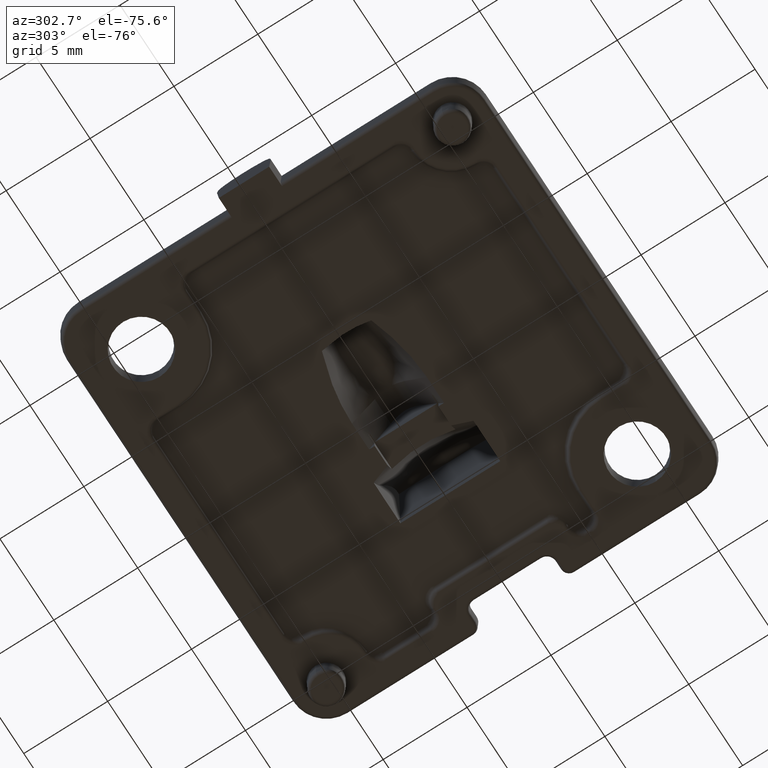
[diagram: clean part render]
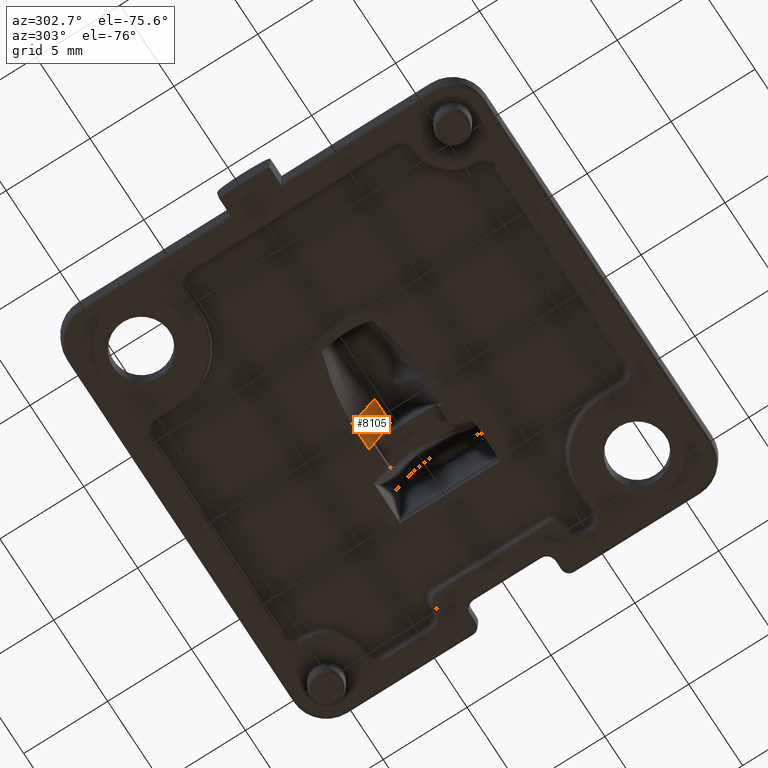
[diagram: same view with one face highlighted and labeled with its STEP entity id]
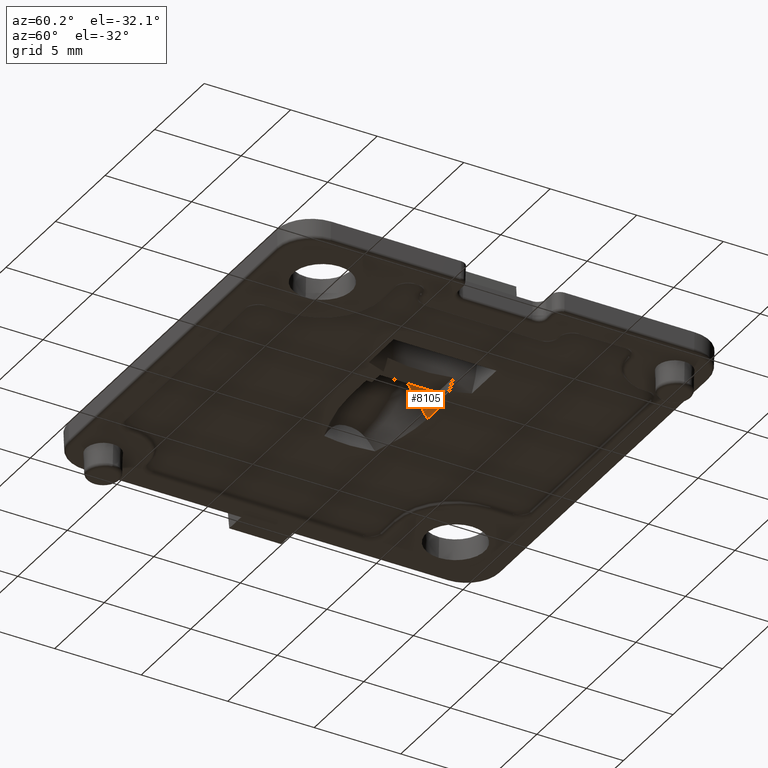
[diagram: same view with one face highlighted and labeled with its STEP entity id]
A machine part, auxiliary view. The second image highlights one B-rep face of the part: STEP entity #8105.
A second angle (auxiliary view) of the same face is appended — the face is thin or edge-on in the first view.
In plain terms, the highlighted face is a freeform B-spline surface patch.
Its self-contained STEP definition (entity closure, byte-faithful):
#69 = CARTESIAN_POINT ( 'NONE',  ( 12.18389571751927700, 0.8692102914227531900, 2.825680269827150600 ) ) ;
#158 = LINE ( 'NONE', #69, #8058 ) ;
#443 = DIRECTION ( 'NONE',  ( 1.000000000000000000, 0.0000000000000000000, 1.457912856127801500E-017 ) ) ;
#445 = EDGE_CURVE ( 'NONE', #547, #1642, #4534, .T. ) ;
#535 = EDGE_CURVE ( 'NONE', #951, #547, #7031, .T. ) ;
#540 = VERTEX_POINT ( 'NONE', #7081 ) ;
#547 = VERTEX_POINT ( 'NONE', #5170 ) ;
#726 = CARTESIAN_POINT ( 'NONE',  ( 1.604327777404126200, 1.381379687142674500, 2.192723211729306500 ) ) ;
#743 = ORIENTED_EDGE ( 'NONE', *, *, #5095, .T. ) ;
#843 = ORIENTED_EDGE ( 'NONE', *, *, #3976, .F. ) ;
#844 = CARTESIAN_POINT ( 'NONE',  ( 1.594759222071696000, 2.231826915377860000, 0.7999999999999989300 ) ) ;
#951 = VERTEX_POINT ( 'NONE', #7553 ) ;
#1089 = B_SPLINE_CURVE_WITH_KNOTS ( 'NONE', 3,
 ( #5578, #4362, #2462, #6789, #3100, #7425 ),
 .UNSPECIFIED., .F., .F.,
 ( 4, 2, 4 ),
 ( 0.0000000000000000000, 0.0008658084553078561200, 0.001731616910615712200 ),
 .UNSPECIFIED. ) ;
#1343 = CARTESIAN_POINT ( 'NONE',  ( 1.604327777404126200, 1.915411158233890600, 1.274335992875806500 ) ) ;
#1640 = EDGE_CURVE ( 'NONE', #3526, #4747, #7513, .T. ) ;
#1641 = CARTESIAN_POINT ( 'NONE',  ( 1.063575677056504800, 1.899999999999999700, 1.318788431902171000 ) ) ;
#1642 = VERTEX_POINT ( 'NONE', #4823 ) ;
#1981 = CARTESIAN_POINT ( 'NONE',  ( 1.604327777404126200, 2.231826917436415600, 0.7999999969140375600 ) ) ;
#2008 = EDGE_CURVE ( 'NONE', #1642, #5187, #6157, .T. ) ;
#2268 = FACE_OUTER_BOUND ( 'NONE', #6788, .T. ) ;
#2283 = VECTOR ( 'NONE', #6459, 1000.000000000000000 ) ;
#2353 = ORIENTED_EDGE ( 'NONE', *, *, #535, .F. ) ;
#2462 = CARTESIAN_POINT ( 'NONE',  ( 1.512703078559324500, 1.217263341152140100, 2.365724490427409100 ) ) ;
#2774 = VECTOR ( 'NONE', #7351, 1000.000000000000000 ) ;
#3079 = CARTESIAN_POINT ( 'NONE',  ( 0.0000000000000000000, 1.915411155923345800, 1.274335996849308400 ) ) ;
#3100 = CARTESIAN_POINT ( 'NONE',  ( 1.550528201431748700, 1.694857172903105000, 1.643978150668565300 ) ) ;
#3186 = CARTESIAN_POINT ( 'NONE',  ( 1.604327777404126200, 0.8692102914227489700, 2.825680269827150600 ) ) ;
#3238 = CARTESIAN_POINT ( 'NONE',  ( 1.488597817592583400, 0.8692102914227531900, 2.825680269827150600 ) ) ;
#3343 = CARTESIAN_POINT ( 'NONE',  ( 1.567570671946612300, 1.899999999999999700, 1.318788441277871400 ) ) ;
#3410 = CARTESIAN_POINT ( 'NONE',  ( 1.567570671946612300, 1.899999999999999700, 1.318788441277871400 ) ) ;
#3526 = VERTEX_POINT ( 'NONE', #7508 ) ;
#3535 = CARTESIAN_POINT ( 'NONE',  ( 1.063575677056505200, 1.866087285095881600, 1.372600281583511200 ) ) ;
#3887 = DIRECTION ( 'NONE',  ( -1.000000000000000000, -0.0000000000000000000, -1.457912856127801500E-017 ) ) ;
#3976 = EDGE_CURVE ( 'NONE', #5187, #3526, #6685, .T. ) ;
#3988 = CARTESIAN_POINT ( 'NONE',  ( 0.8048000000000012900, 1.848799004093735700, 1.400000000000000100 ) ) ;
#4258 = CARTESIAN_POINT ( 'NONE',  ( 0.8048000000000012900, 2.231826915377860000, 0.7999999999999989300 ) ) ;
#4330 = CARTESIAN_POINT ( 'NONE',  ( 1.746073792100298700E-009, 2.231828715181715800, 0.8000000000000001600 ) ) ;
#4362 = CARTESIAN_POINT ( 'NONE',  ( 1.500361312434060500, 1.050837114239175700, 2.601219416831540300 ) ) ;
#4483 = ORIENTED_EDGE ( 'NONE', *, *, #1640, .F. ) ;
#4494 = CARTESIAN_POINT ( 'NONE',  ( 0.0000000000000000000, 0.8692102914227489700, 2.825680269827150600 ) ) ;
#4534 = B_SPLINE_CURVE_WITH_KNOTS ( 'NONE', 3,
 ( #7848, #3535, #5360, #1641 ),
 .UNSPECIFIED., .F., .F.,
 ( 4, 4 ),
 ( 0.3919951340537739000, 0.4154159672714775600 ),
 .UNSPECIFIED. ) ;
#4601 = CARTESIAN_POINT ( 'NONE',  ( 1.585808278872048400, 2.117895087340675000, 0.9707941706765508300 ) ) ;
#4726 = VECTOR ( 'NONE', #443, 1000.000000000000000 ) ;
#4739 = B_SPLINE_CURVE_WITH_KNOTS ( 'NONE', 3,
 ( #7377, #5538, #3079, #7405 ),
 .UNSPECIFIED., .F., .F.,
 ( 4, 4 ),
 ( 0.0000000000000000000, 0.9294637484868236700 ),
 .UNSPECIFIED. ) ;
#4747 = VERTEX_POINT ( 'NONE', #4330 ) ;
#4786 = B_SPLINE_SURFACE_WITH_KNOTS ( 'NONE', 3, 1, ( 
 ( #3186, #4494 ),
 ( #726, #5082 ),
 ( #1343, #5708 ),
 ( #1981, #6324 ) ),
 .UNSPECIFIED., .F., .F., .F.,
 ( 4, 4 ),
 ( 2, 2 ),
 ( 0.0000000000000000000, 0.5899876841131910200 ),
 ( 0.0000000000000000000, 1.000000000000000000 ),
 .UNSPECIFIED. ) ;
#4823 = CARTESIAN_POINT ( 'NONE',  ( 1.063575677056504800, 1.899999999999999700, 1.318788431902171000 ) ) ;
#5082 = CARTESIAN_POINT ( 'NONE',  ( 0.0000000000000000000, 1.381379687142674500, 2.192723211729306500 ) ) ;
#5095 = EDGE_CURVE ( 'NONE', #5790, #540, #158, .T. ) ;
#5170 = CARTESIAN_POINT ( 'NONE',  ( 1.063575677056504800, 1.848799004093734800, 1.399999999999999900 ) ) ;
#5187 = VERTEX_POINT ( 'NONE', #3410 ) ;
#5195 = CARTESIAN_POINT ( 'NONE',  ( 0.8048000000000014000, 1.899999999999999700, 1.318788441277871400 ) ) ;
#5360 = CARTESIAN_POINT ( 'NONE',  ( 1.063575677056505200, 1.883159278836071400, 1.345514548306415000 ) ) ;
#5538 = CARTESIAN_POINT ( 'NONE',  ( 0.0000000000000000000, 1.381379686034696300, 2.192723213098585400 ) ) ;
#5578 = CARTESIAN_POINT ( 'NONE',  ( 1.488597817592583400, 0.8692102914227531900, 2.825680269827150600 ) ) ;
#5645 = ORIENTED_EDGE ( 'NONE', *, *, #6495, .T. ) ;
#5708 = CARTESIAN_POINT ( 'NONE',  ( 0.0000000000000000000, 1.915411158233890600, 1.274335992875806500 ) ) ;
#5724 = EDGE_CURVE ( 'NONE', #5790, #951, #1089, .T. ) ;
#5790 = VERTEX_POINT ( 'NONE', #3238 ) ;
#6047 = ORIENTED_EDGE ( 'NONE', *, *, #5724, .F. ) ;
#6157 = LINE ( 'NONE', #5195, #4726 ) ;
#6177 = ORIENTED_EDGE ( 'NONE', *, *, #445, .F. ) ;
#6324 = CARTESIAN_POINT ( 'NONE',  ( 0.0000000000000000000, 2.231826917436415600, 0.7999999969140375600 ) ) ;
#6459 = DIRECTION ( 'NONE',  ( -1.000000000000000000, -0.0000000000000000000, -1.457912856127801500E-017 ) ) ;
#6495 = EDGE_CURVE ( 'NONE', #540, #4747, #4739, .T. ) ;
#6685 = B_SPLINE_CURVE_WITH_KNOTS ( 'NONE', 3,
 ( #3343, #7032, #4601, #844 ),
 .UNSPECIFIED., .F., .F.,
 ( 4, 4 ),
 ( 0.001827660400800675200, 0.002443765520571927700 ),
 .UNSPECIFIED. ) ;
#6788 = EDGE_LOOP ( 'NONE', ( #4483, #843, #7830, #6177, #2353, #6047, #743, #5645 ) ) ;
#6789 = CARTESIAN_POINT ( 'NONE',  ( 1.537779382460786800, 1.539791292766748100, 1.887240108060587600 ) ) ;
#7031 = LINE ( 'NONE', #3988, #2283 ) ;
#7032 = CARTESIAN_POINT ( 'NONE',  ( 1.576672888095709300, 2.009440071719900400, 1.145107810775713600 ) ) ;
#7081 = CARTESIAN_POINT ( 'NONE',  ( -1.549542901477797900E-017, 0.8692102914227538600, 2.825680269827151900 ) ) ;
#7351 = DIRECTION ( 'NONE',  ( -1.000000000000000000, -0.0000000000000000000, -1.457912856127801500E-017 ) ) ;
#7377 = CARTESIAN_POINT ( 'NONE',  ( -1.549542901477797900E-017, 0.8692102914227538600, 2.825680269827151900 ) ) ;
#7405 = CARTESIAN_POINT ( 'NONE',  ( 1.746073792100298700E-009, 2.231828715181715800, 0.8000000000000001600 ) ) ;
#7425 = CARTESIAN_POINT ( 'NONE',  ( 1.563314554501871200, 1.848799004093735700, 1.400000000000000100 ) ) ;
#7508 = CARTESIAN_POINT ( 'NONE',  ( 1.594759222071696000, 2.231826915377860000, 0.7999999999999989300 ) ) ;
#7513 = LINE ( 'NONE', #4258, #2774 ) ;
#7553 = CARTESIAN_POINT ( 'NONE',  ( 1.563314554501871200, 1.848799004093735700, 1.400000000000000100 ) ) ;
#7830 = ORIENTED_EDGE ( 'NONE', *, *, #2008, .F. ) ;
#7848 = CARTESIAN_POINT ( 'NONE',  ( 1.063575677056504800, 1.848799004093734800, 1.399999999999999900 ) ) ;
#8058 = VECTOR ( 'NONE', #3887, 1000.000000000000000 ) ;
#8105 = ADVANCED_FACE ( 'NONE', ( #2268 ), #4786, .F. ) ;